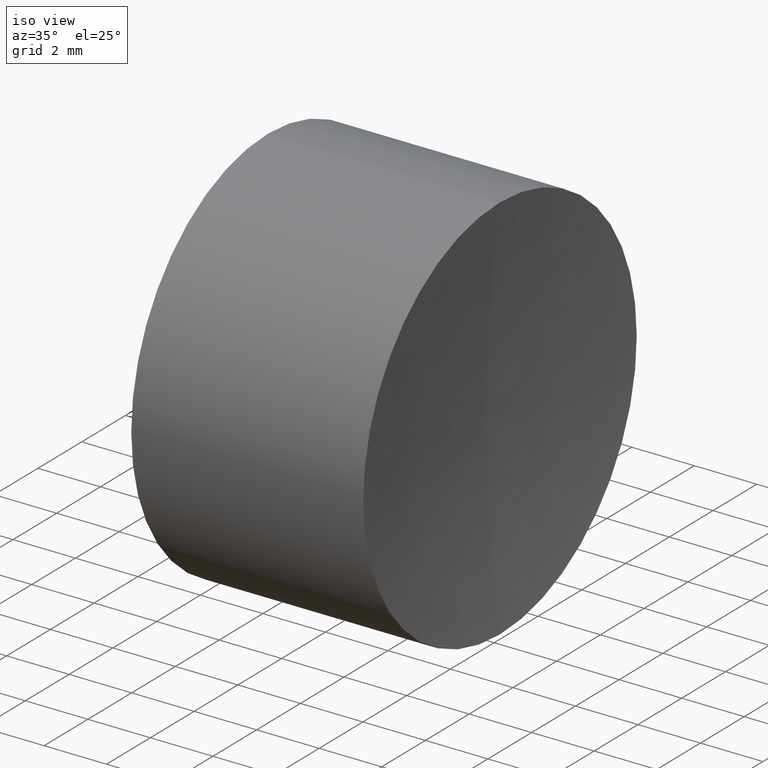
[diagram: clean part render]
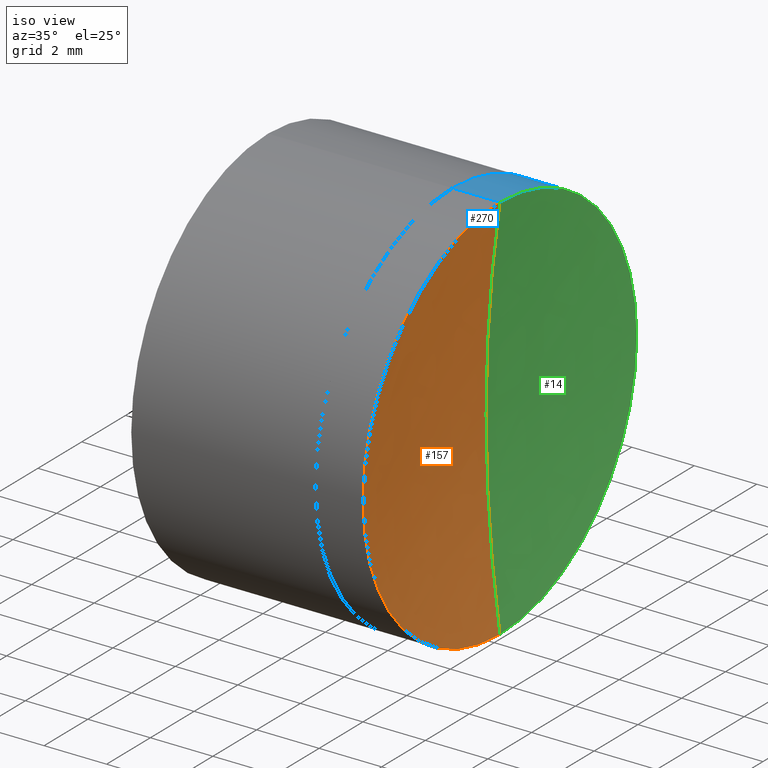
[diagram: same view with three faces highlighted in distinct colors, each labeled with its STEP entity id]
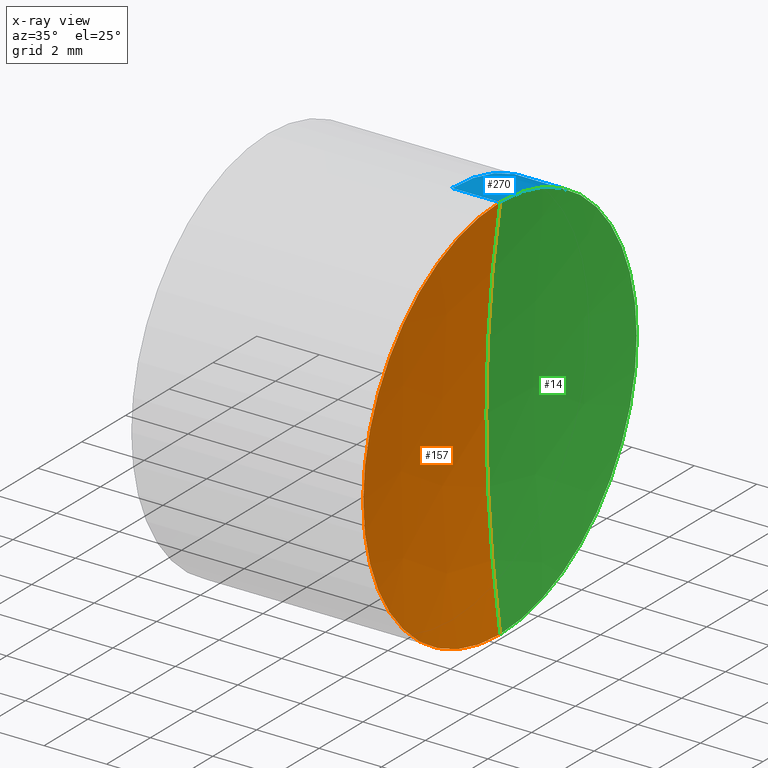
[diagram: x-ray of the same camera — body ghosted, the three highlighted faces saturated]
A machine part, iso view with three faces highlighted in distinct colors.
The next image is the same camera in x-ray (body ghosted, the three faces saturated) — at least one of them is partly hidden behind the body in this view.
Their STEP definitions:

[orange] entity #157 — the highlighted spherical surface has radius 44.16 mm.
#1 = DIRECTION ( 'NONE',  ( 0.0000000000000000000, -1.000000000000000000, 0.0000000000000000000 ) ) ;
#8 = EDGE_CURVE ( 'NONE', #122, #172, #330, .T. ) ;
#9 = AXIS2_PLACEMENT_3D ( 'NONE', #305, #113, #325 ) ;
#12 = ORIENTED_EDGE ( 'NONE', *, *, #8, .F. ) ;
#51 = CARTESIAN_POINT ( 'NONE',  ( 232.1856338611331400, 0.0000000000000000000, 6.250000000000000000 ) ) ;
#53 = AXIS2_PLACEMENT_3D ( 'NONE', #67, #118, #160 ) ;
#60 = CARTESIAN_POINT ( 'NONE',  ( 232.1856338611331700, 0.0000000000000000000, -1.143077084485743200E-014 ) ) ;
#67 = CARTESIAN_POINT ( 'NONE',  ( 275.9011128131015800, 0.0000000000000000000, 0.0000000000000000000 ) ) ;
#75 = CARTESIAN_POINT ( 'NONE',  ( 231.7411128131016100, 0.0000000000000000000, -1.770158217885320100E-013 ) ) ;
#113 = DIRECTION ( 'NONE',  ( -4.983997489852390500E-031, 1.000000000000000000, 1.224646799147353200E-016 ) ) ;
#118 = DIRECTION ( 'NONE',  ( 0.0000000000000000000, 1.000000000000000000, -0.0000000000000000000 ) ) ;
#122 = VERTEX_POINT ( 'NONE', #261 ) ;
#123 = CIRCLE ( 'NONE', #9, 44.15999999999996100 ) ;
#146 = DIRECTION ( 'NONE',  ( -1.000000000000000000, -0.0000000000000000000, -4.069742797125215000E-015 ) ) ;
#157 = ADVANCED_FACE ( 'NONE', ( #311 ), #247, .F. ) ;
#159 = DIRECTION ( 'NONE',  ( -4.440892098500618300E-015, 0.0000000000000000000, 1.000000000000000000 ) ) ;
#160 = DIRECTION ( 'NONE',  ( -3.771137991253931800E-015, 0.0000000000000000000, 1.000000000000000000 ) ) ;
#171 = CIRCLE ( 'NONE', #225, 44.15999999999996100 ) ;
#172 = VERTEX_POINT ( 'NONE', #51 ) ;
#178 = ORIENTED_EDGE ( 'NONE', *, *, #200, .F. ) ;
#200 = EDGE_CURVE ( 'NONE', #172, #203, #171, .T. ) ;
#203 = VERTEX_POINT ( 'NONE', #75 ) ;
#219 = EDGE_LOOP ( 'NONE', ( #12, #303, #178 ) ) ;
#225 = AXIS2_PLACEMENT_3D ( 'NONE', #255, #1, #280 ) ;
#247 = SPHERICAL_SURFACE ( 'NONE', #53, 44.15999999999996100 ) ;
#255 = CARTESIAN_POINT ( 'NONE',  ( 275.9011128131015800, 0.0000000000000000000, 0.0000000000000000000 ) ) ;
#261 = CARTESIAN_POINT ( 'NONE',  ( 232.1856338611332000, 7.654042494670970400E-016, -6.250000000000023100 ) ) ;
#280 = DIRECTION ( 'NONE',  ( 0.0000000000000000000, 0.0000000000000000000, -1.000000000000000000 ) ) ;
#289 = EDGE_CURVE ( 'NONE', #122, #203, #123, .T. ) ;
#303 = ORIENTED_EDGE ( 'NONE', *, *, #289, .T. ) ;
#305 = CARTESIAN_POINT ( 'NONE',  ( 275.9011128131015800, 0.0000000000000000000, 0.0000000000000000000 ) ) ;
#311 = FACE_OUTER_BOUND ( 'NONE', #219, .T. ) ;
#325 = DIRECTION ( 'NONE',  ( 0.0000000000000000000, -1.224646799147353500E-016, 1.000000000000000000 ) ) ;
#330 = CIRCLE ( 'NONE', #335, 6.250000000000011500 ) ;
#335 = AXIS2_PLACEMENT_3D ( 'NONE', #60, #146, #159 ) ;

[blue] entity #270 — the highlighted cylindrical surface (partial cylindrical patch) has radius 6.25 mm, axis along (-1, -0, -0).
#22 = LINE ( 'NONE', #185, #302 ) ;
#23 = EDGE_LOOP ( 'NONE', ( #347, #145, #313, #224 ) ) ;
#32 = DIRECTION ( 'NONE',  ( -1.000000000000000000, -0.0000000000000000000, -4.069742797125215000E-015 ) ) ;
#45 = CARTESIAN_POINT ( 'NONE',  ( 230.6595650911644100, 7.654042494670974400E-016, -6.250000000000061300 ) ) ;
#46 = CARTESIAN_POINT ( 'NONE',  ( 230.6595650911643800, 0.0000000000000000000, -1.764147822935559100E-014 ) ) ;
#51 = CARTESIAN_POINT ( 'NONE',  ( 232.1856338611331400, 0.0000000000000000000, 6.250000000000000000 ) ) ;
#58 = DIRECTION ( 'NONE',  ( -1.000000000000000000, -0.0000000000000000000, -4.069742797125215000E-015 ) ) ;
#69 = DIRECTION ( 'NONE',  ( -1.000000000000000000, -0.0000000000000000000, -4.069742797125215000E-015 ) ) ;
#100 = CARTESIAN_POINT ( 'NONE',  ( 230.6595650911643500, 0.0000000000000000000, 6.249999999999996400 ) ) ;
#110 = CIRCLE ( 'NONE', #328, 6.250000000000006200 ) ;
#122 = VERTEX_POINT ( 'NONE', #261 ) ;
#145 = ORIENTED_EDGE ( 'NONE', *, *, #298, .T. ) ;
#156 = EDGE_CURVE ( 'NONE', #233, #275, #110, .T. ) ;
#165 = FACE_OUTER_BOUND ( 'NONE', #23, .T. ) ;
#172 = VERTEX_POINT ( 'NONE', #51 ) ;
#173 = VECTOR ( 'NONE', #262, 1000.000000000000000 ) ;
#175 = EDGE_CURVE ( 'NONE', #172, #233, #22, .T. ) ;
#183 = DIRECTION ( 'NONE',  ( -1.000000000000000000, -0.0000000000000000000, -4.069742797125215000E-015 ) ) ;
#185 = CARTESIAN_POINT ( 'NONE',  ( 224.7643804590949500, 0.0000000000000000000, 6.249999999999967100 ) ) ;
#194 = DIRECTION ( 'NONE',  ( -4.440892098500618300E-015, 0.0000000000000000000, 1.000000000000000000 ) ) ;
#198 = DIRECTION ( 'NONE',  ( -4.440892098500621400E-015, 0.0000000000000000000, 1.000000000000000000 ) ) ;
#205 = DIRECTION ( 'NONE',  ( -4.440892098500619900E-015, 0.0000000000000000000, 1.000000000000000000 ) ) ;
#206 = CARTESIAN_POINT ( 'NONE',  ( 224.7643804590949800, 0.0000000000000000000, -4.163336342344337000E-014 ) ) ;
#216 = EDGE_CURVE ( 'NONE', #172, #122, #228, .T. ) ;
#224 = ORIENTED_EDGE ( 'NONE', *, *, #175, .F. ) ;
#228 = CIRCLE ( 'NONE', #232, 6.250000000000011500 ) ;
#232 = AXIS2_PLACEMENT_3D ( 'NONE', #234, #69, #194 ) ;
#233 = VERTEX_POINT ( 'NONE', #100 ) ;
#234 = CARTESIAN_POINT ( 'NONE',  ( 232.1856338611331700, 0.0000000000000000000, -1.143077084485743200E-014 ) ) ;
#246 = AXIS2_PLACEMENT_3D ( 'NONE', #206, #58, #205 ) ;
#259 = CARTESIAN_POINT ( 'NONE',  ( 224.7643804590950100, 7.654042494670968500E-016, -6.250000000000050600 ) ) ;
#261 = CARTESIAN_POINT ( 'NONE',  ( 232.1856338611332000, 7.654042494670970400E-016, -6.250000000000023100 ) ) ;
#262 = DIRECTION ( 'NONE',  ( -1.000000000000000000, -0.0000000000000000000, -4.069742797125215000E-015 ) ) ;
#270 = ADVANCED_FACE ( 'NONE', ( #165 ), #273, .T. ) ;
#273 = CYLINDRICAL_SURFACE ( 'NONE', #246, 6.250000000000008900 ) ;
#275 = VERTEX_POINT ( 'NONE', #45 ) ;
#298 = EDGE_CURVE ( 'NONE', #122, #275, #321, .T. ) ;
#302 = VECTOR ( 'NONE', #183, 1000.000000000000000 ) ;
#313 = ORIENTED_EDGE ( 'NONE', *, *, #156, .F. ) ;
#321 = LINE ( 'NONE', #259, #173 ) ;
#328 = AXIS2_PLACEMENT_3D ( 'NONE', #46, #32, #198 ) ;
#347 = ORIENTED_EDGE ( 'NONE', *, *, #216, .T. ) ;

[green] entity #14 — the highlighted spherical surface has radius 44.16 mm.
#1 = DIRECTION ( 'NONE',  ( 0.0000000000000000000, -1.000000000000000000, 0.0000000000000000000 ) ) ;
#9 = AXIS2_PLACEMENT_3D ( 'NONE', #305, #113, #325 ) ;
#14 = ADVANCED_FACE ( 'NONE', ( #124 ), #260, .F. ) ;
#27 = DIRECTION ( 'NONE',  ( -3.771137991253931800E-015, 0.0000000000000000000, 1.000000000000000000 ) ) ;
#43 = AXIS2_PLACEMENT_3D ( 'NONE', #236, #137, #27 ) ;
#51 = CARTESIAN_POINT ( 'NONE',  ( 232.1856338611331400, 0.0000000000000000000, 6.250000000000000000 ) ) ;
#69 = DIRECTION ( 'NONE',  ( -1.000000000000000000, -0.0000000000000000000, -4.069742797125215000E-015 ) ) ;
#75 = CARTESIAN_POINT ( 'NONE',  ( 231.7411128131016100, 0.0000000000000000000, -1.770158217885320100E-013 ) ) ;
#95 = ORIENTED_EDGE ( 'NONE', *, *, #216, .F. ) ;
#113 = DIRECTION ( 'NONE',  ( -4.983997489852390500E-031, 1.000000000000000000, 1.224646799147353200E-016 ) ) ;
#122 = VERTEX_POINT ( 'NONE', #261 ) ;
#123 = CIRCLE ( 'NONE', #9, 44.15999999999996100 ) ;
#124 = FACE_OUTER_BOUND ( 'NONE', #269, .T. ) ;
#137 = DIRECTION ( 'NONE',  ( 0.0000000000000000000, 1.000000000000000000, -0.0000000000000000000 ) ) ;
#150 = ORIENTED_EDGE ( 'NONE', *, *, #200, .T. ) ;
#171 = CIRCLE ( 'NONE', #225, 44.15999999999996100 ) ;
#172 = VERTEX_POINT ( 'NONE', #51 ) ;
#194 = DIRECTION ( 'NONE',  ( -4.440892098500618300E-015, 0.0000000000000000000, 1.000000000000000000 ) ) ;
#200 = EDGE_CURVE ( 'NONE', #172, #203, #171, .T. ) ;
#203 = VERTEX_POINT ( 'NONE', #75 ) ;
#216 = EDGE_CURVE ( 'NONE', #172, #122, #228, .T. ) ;
#225 = AXIS2_PLACEMENT_3D ( 'NONE', #255, #1, #280 ) ;
#228 = CIRCLE ( 'NONE', #232, 6.250000000000011500 ) ;
#232 = AXIS2_PLACEMENT_3D ( 'NONE', #234, #69, #194 ) ;
#234 = CARTESIAN_POINT ( 'NONE',  ( 232.1856338611331700, 0.0000000000000000000, -1.143077084485743200E-014 ) ) ;
#236 = CARTESIAN_POINT ( 'NONE',  ( 275.9011128131015800, 0.0000000000000000000, 0.0000000000000000000 ) ) ;
#255 = CARTESIAN_POINT ( 'NONE',  ( 275.9011128131015800, 0.0000000000000000000, 0.0000000000000000000 ) ) ;
#260 = SPHERICAL_SURFACE ( 'NONE', #43, 44.15999999999996100 ) ;
#261 = CARTESIAN_POINT ( 'NONE',  ( 232.1856338611332000, 7.654042494670970400E-016, -6.250000000000023100 ) ) ;
#269 = EDGE_LOOP ( 'NONE', ( #290, #95, #150 ) ) ;
#280 = DIRECTION ( 'NONE',  ( 0.0000000000000000000, 0.0000000000000000000, -1.000000000000000000 ) ) ;
#289 = EDGE_CURVE ( 'NONE', #122, #203, #123, .T. ) ;
#290 = ORIENTED_EDGE ( 'NONE', *, *, #289, .F. ) ;
#305 = CARTESIAN_POINT ( 'NONE',  ( 275.9011128131015800, 0.0000000000000000000, 0.0000000000000000000 ) ) ;
#325 = DIRECTION ( 'NONE',  ( 0.0000000000000000000, -1.224646799147353500E-016, 1.000000000000000000 ) ) ;